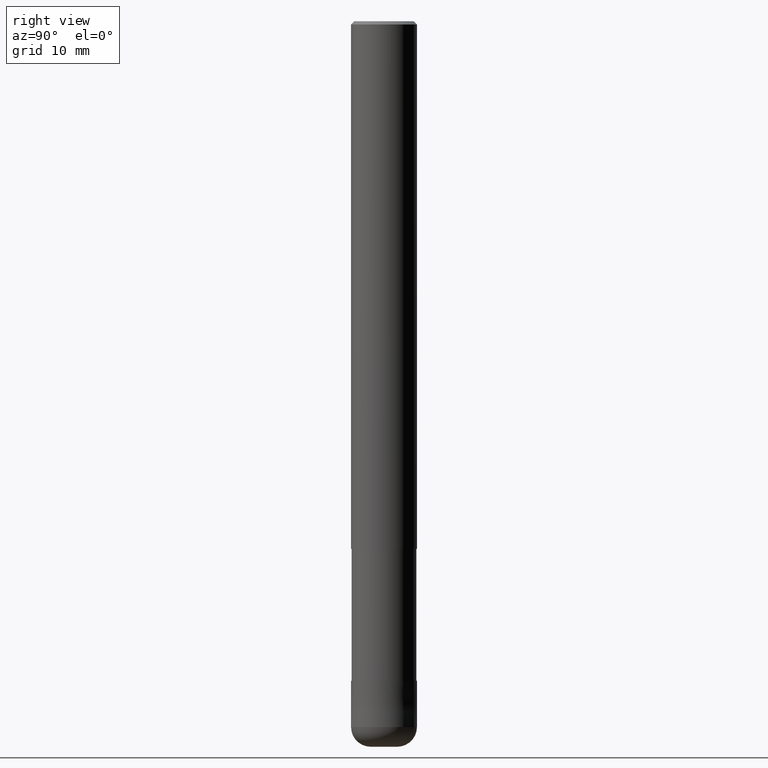
[diagram: clean part render]
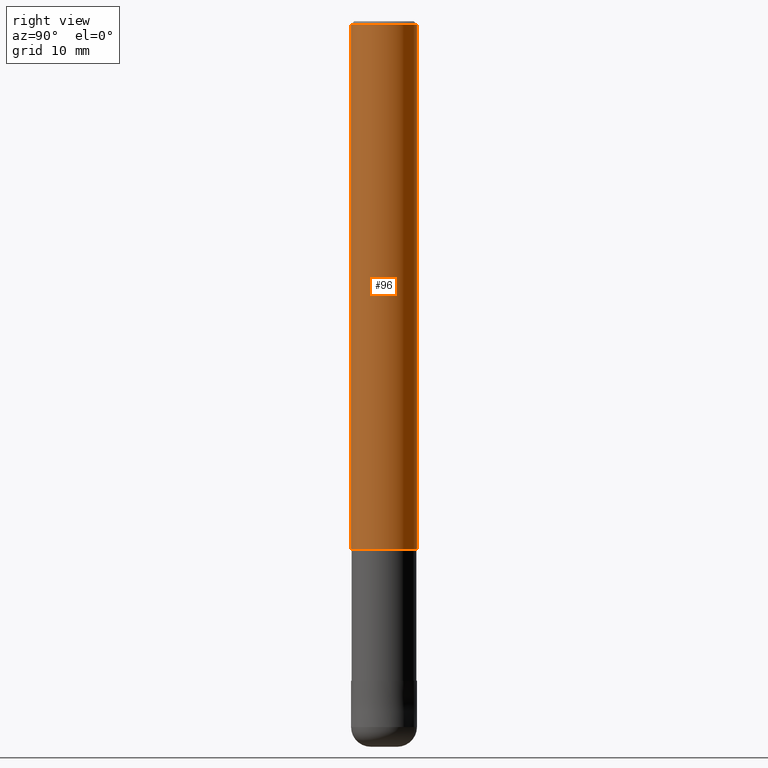
[diagram: same view with one face highlighted and labeled with its STEP entity id]
A machine part, right view. The second image highlights one B-rep face of the part: STEP entity #96.
In plain terms, the highlighted cylindrical surface (edge-blend (fillet) strip) has radius 5 mm, axis along (-0, -0, 1).
Its self-contained STEP definition (entity closure, byte-faithful):
#92=EDGE_CURVE('',#130,#112,#229,.T.);
#96=ADVANCED_FACE('',(#233),#234,.T.);
#98=VERTEX_POINT('',#236);
#110=EDGE_CURVE('',#200,#98,#248,.T.);
#112=VERTEX_POINT('',#250);
#130=VERTEX_POINT('',#270);
#144=EDGE_CURVE('',#130,#98,#287,.T.);
#166=EDGE_CURVE('',#112,#200,#310,.T.);
#200=VERTEX_POINT('',#351);
#229=LINE('',#375,#376);
#233=FACE_OUTER_BOUND('',#381,.T.);
#234=CYLINDRICAL_SURFACE('',#382,5.0);
#236=CARTESIAN_POINT('',(6.12303176911189E-016,-5.0,-0.5));
#248=LINE('',#397,#398);
#250=CARTESIAN_POINT('',(0.0,5.0,-80.0));
#270=CARTESIAN_POINT('',(0.0,5.0,-0.5));
#287=CIRCLE('',#445,5.0);
#310=CIRCLE('',#475,5.0);
#351=CARTESIAN_POINT('',(6.12303176911189E-016,-5.0,-80.0));
#375=CARTESIAN_POINT('',(-6.12303176911189E-016,5.0,-40.25));
#376=VECTOR('',#540,1.0);
#381=EDGE_LOOP('',(#545,#546,#547,#548));
#382=AXIS2_PLACEMENT_3D('',#549,#550,#551);
#397=CARTESIAN_POINT('',(6.12303176911189E-016,-5.0,-40.25));
#398=VECTOR('',#555,1.0);
#445=AXIS2_PLACEMENT_3D('',#605,#606,#607);
#475=AXIS2_PLACEMENT_3D('',#627,#628,#629);
#540=DIRECTION('',(0.0,0.0,-1.0));
#545=ORIENTED_EDGE('',*,*,#92,.F.);
#546=ORIENTED_EDGE('',*,*,#144,.T.);
#547=ORIENTED_EDGE('',*,*,#110,.F.);
#548=ORIENTED_EDGE('',*,*,#166,.F.);
#549=CARTESIAN_POINT('',(0.0,0.0,-40.25));
#550=DIRECTION('',(-0.0,-0.0,1.0));
#551=DIRECTION('',(0.0,1.0,0.0));
#555=DIRECTION('',(-0.0,-0.0,1.0));
#605=CARTESIAN_POINT('',(0.0,0.0,-0.5));
#606=DIRECTION('',(0.0,0.0,-1.0));
#607=DIRECTION('',(0.0,1.0,0.0));
#627=CARTESIAN_POINT('',(0.0,0.0,-80.0));
#628=DIRECTION('',(0.0,0.0,-1.0));
#629=DIRECTION('',(0.0,1.0,0.0));